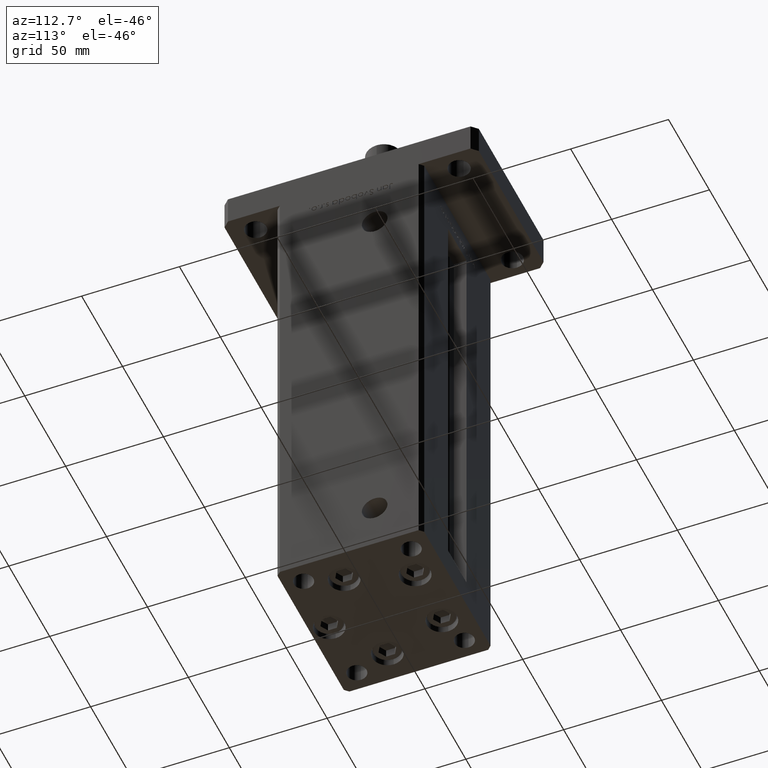
[diagram: clean part render]
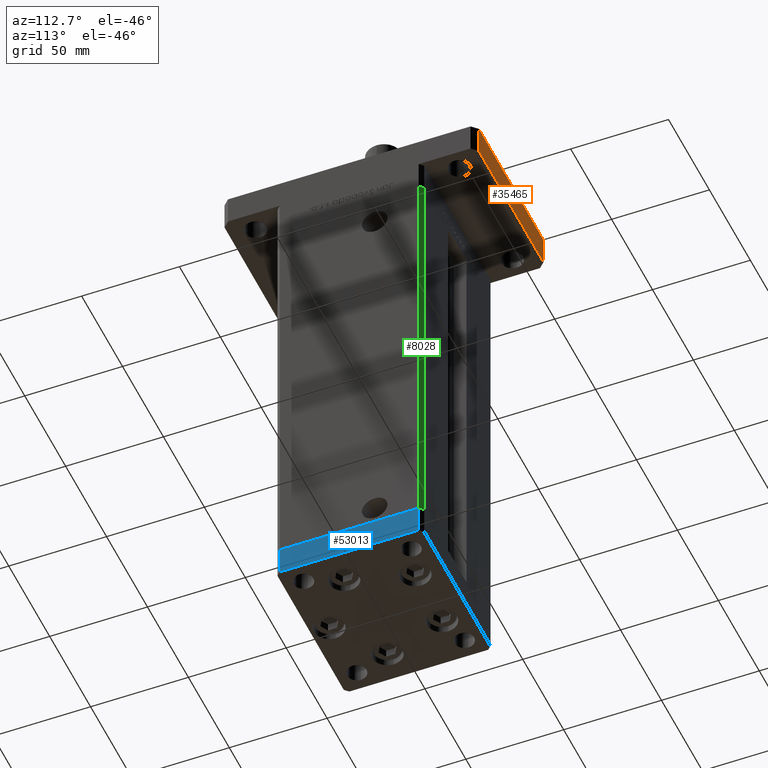
[diagram: same view with three faces highlighted in distinct colors, each labeled with its STEP entity id]
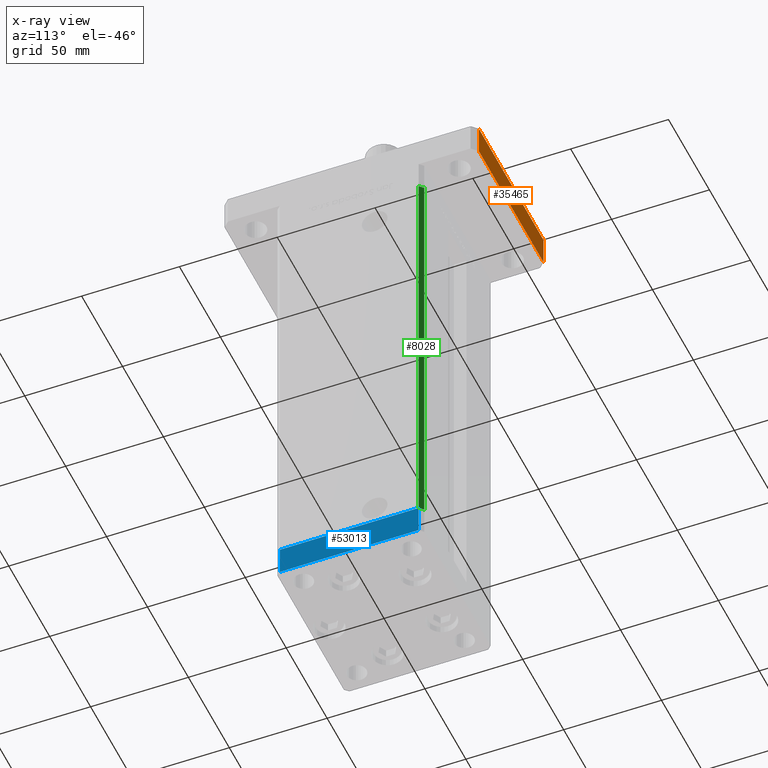
[diagram: x-ray of the same camera — body ghosted, the three highlighted faces saturated]
A machine part, auxiliary view with three faces highlighted in distinct colors.
The next image is the same camera in x-ray (body ghosted, the three faces saturated) — at least one of them is partly hidden behind the body in this view.
Their STEP definitions:

[orange] entity #35465 — the highlighted planar face has unit normal (0, -1, 0).
#209 = AXIS2_PLACEMENT_3D ( 'NONE', #23745, #50017, #37444 ) ;
#7152 = VECTOR ( 'NONE', #9212, 1000.000000000000000 ) ;
#9212 = DIRECTION ( 'NONE',  ( -1.000000000000000000, -3.513364001978340512E-16, 0.000000000000000000 ) ) ;
#10689 = VERTEX_POINT ( 'NONE', #46167 ) ;
#10881 = PLANE ( 'NONE',  #209 ) ;
#11150 = CARTESIAN_POINT ( 'NONE',  ( 39.50000000000002842, 65.00000000000002842, 0.000000000000000000 ) ) ;
#11663 = VECTOR ( 'NONE', #15134, 1000.000000000000000 ) ;
#12523 = VERTEX_POINT ( 'NONE', #37256 ) ;
#12864 = LINE ( 'NONE', #29636, #7152 ) ;
#13121 = LINE ( 'NONE', #18671, #37506 ) ;
#13704 = EDGE_CURVE ( 'NONE', #12523, #28341, #13121, .T. ) ;
#14840 = EDGE_CURVE ( 'NONE', #12523, #10689, #12864, .T. ) ;
#15134 = DIRECTION ( 'NONE',  ( -0.000000000000000000, -0.000000000000000000, -1.000000000000000000 ) ) ;
#15662 = VECTOR ( 'NONE', #16182, 1000.000000000000000 ) ;
#15727 = EDGE_CURVE ( 'NONE', #10689, #16011, #23521, .T. ) ;
#16011 = VERTEX_POINT ( 'NONE', #22626 ) ;
#16182 = DIRECTION ( 'NONE',  ( -1.000000000000000000, -3.513364001978340512E-16, 0.000000000000000000 ) ) ;
#17860 = DIRECTION ( 'NONE',  ( -0.000000000000000000, -0.000000000000000000, -1.000000000000000000 ) ) ;
#18671 = CARTESIAN_POINT ( 'NONE',  ( 39.50000000000002842, 65.00000000000002842, 15.00000000000000000 ) ) ;
#20650 = LINE ( 'NONE', #11150, #15662 ) ;
#22626 = CARTESIAN_POINT ( 'NONE',  ( -39.50000000000003553, 65.00000000000000000, 0.000000000000000000 ) ) ;
#23521 = LINE ( 'NONE', #41124, #11663 ) ;
#23745 = CARTESIAN_POINT ( 'NONE',  ( 39.50000000000002842, 65.00000000000002842, 15.00000000000000000 ) ) ;
#24022 = FACE_OUTER_BOUND ( 'NONE', #36771, .T. ) ;
#26049 = ORIENTED_EDGE ( 'NONE', *, *, #15727, .F. ) ;
#28341 = VERTEX_POINT ( 'NONE', #50199 ) ;
#29636 = CARTESIAN_POINT ( 'NONE',  ( 39.50000000000002842, 65.00000000000002842, 15.00000000000000000 ) ) ;
#29949 = ORIENTED_EDGE ( 'NONE', *, *, #48736, .T. ) ;
#30729 = ORIENTED_EDGE ( 'NONE', *, *, #13704, .T. ) ;
#35465 = ADVANCED_FACE ( 'NONE', ( #24022 ), #10881, .F. ) ;
#36771 = EDGE_LOOP ( 'NONE', ( #29949, #26049, #45321, #30729 ) ) ;
#37256 = CARTESIAN_POINT ( 'NONE',  ( 39.50000000000002842, 65.00000000000002842, 15.00000000000000000 ) ) ;
#37444 = DIRECTION ( 'NONE',  ( 1.000000000000000000, 3.513364001978341005E-16, 0.000000000000000000 ) ) ;
#37506 = VECTOR ( 'NONE', #17860, 1000.000000000000000 ) ;
#41124 = CARTESIAN_POINT ( 'NONE',  ( -39.50000000000003553, 65.00000000000000000, 15.00000000000000000 ) ) ;
#45321 = ORIENTED_EDGE ( 'NONE', *, *, #14840, .F. ) ;
#46167 = CARTESIAN_POINT ( 'NONE',  ( -39.50000000000003553, 65.00000000000000000, 15.00000000000000000 ) ) ;
#48736 = EDGE_CURVE ( 'NONE', #28341, #16011, #20650, .T. ) ;
#50017 = DIRECTION ( 'NONE',  ( 3.513364001978341005E-16, -1.000000000000000000, 0.000000000000000000 ) ) ;
#50199 = CARTESIAN_POINT ( 'NONE',  ( 39.50000000000002842, 65.00000000000002842, 0.000000000000000000 ) ) ;

[blue] entity #53013 — the highlighted planar face has unit normal (1, -0, 0).
#308 = VECTOR ( 'NONE', #46400, 1000.000000000000000 ) ;
#458 = VERTEX_POINT ( 'NONE', #6586 ) ;
#1598 = PLANE ( 'NONE',  #22951 ) ;
#3789 = VECTOR ( 'NONE', #20555, 1000.000000000000000 ) ;
#5122 = LINE ( 'NONE', #26898, #53970 ) ;
#6586 = CARTESIAN_POINT ( 'NONE',  ( -42.50000000000000000, -35.50000000000000711, 0.000000000000000000 ) ) ;
#8101 = LINE ( 'NONE', #38565, #308 ) ;
#11752 = CARTESIAN_POINT ( 'NONE',  ( -42.50000000000000000, -35.50000000000000711, -15.00000000000000000 ) ) ;
#13621 = CARTESIAN_POINT ( 'NONE',  ( -42.50000000000000711, 35.49999999999997158, -15.00000000000000000 ) ) ;
#18933 = LINE ( 'NONE', #35727, #48465 ) ;
#19140 = VERTEX_POINT ( 'NONE', #11752 ) ;
#20555 = DIRECTION ( 'NONE',  ( 9.773090005503140331E-17, -1.000000000000000000, 0.000000000000000000 ) ) ;
#20823 = EDGE_CURVE ( 'NONE', #21954, #19140, #54388, .T. ) ;
#21107 = CARTESIAN_POINT ( 'NONE',  ( -42.50000000000000711, 35.49999999999997158, -15.00000000000000000 ) ) ;
#21954 = VERTEX_POINT ( 'NONE', #44352 ) ;
#22951 = AXIS2_PLACEMENT_3D ( 'NONE', #13621, #47731, #34330 ) ;
#26809 = ORIENTED_EDGE ( 'NONE', *, *, #26908, .T. ) ;
#26898 = CARTESIAN_POINT ( 'NONE',  ( -42.50000000000000711, 35.49999999999997158, -15.00000000000000000 ) ) ;
#26908 = EDGE_CURVE ( 'NONE', #19140, #458, #8101, .T. ) ;
#34330 = DIRECTION ( 'NONE',  ( 9.773090005503140331E-17, -1.000000000000000000, 0.000000000000000000 ) ) ;
#34602 = FACE_OUTER_BOUND ( 'NONE', #53913, .T. ) ;
#35727 = CARTESIAN_POINT ( 'NONE',  ( -42.50000000000000711, 35.49999999999997158, 0.000000000000000000 ) ) ;
#35999 = DIRECTION ( 'NONE',  ( 9.773090005503140331E-17, -1.000000000000000000, 0.000000000000000000 ) ) ;
#37560 = EDGE_CURVE ( 'NONE', #37704, #458, #18933, .T. ) ;
#37704 = VERTEX_POINT ( 'NONE', #51885 ) ;
#38565 = CARTESIAN_POINT ( 'NONE',  ( -42.50000000000000000, -35.50000000000000711, -15.00000000000000000 ) ) ;
#39466 = ORIENTED_EDGE ( 'NONE', *, *, #20823, .T. ) ;
#41519 = EDGE_CURVE ( 'NONE', #21954, #37704, #5122, .T. ) ;
#42866 = DIRECTION ( 'NONE',  ( 0.000000000000000000, 0.000000000000000000, 1.000000000000000000 ) ) ;
#44352 = CARTESIAN_POINT ( 'NONE',  ( -42.50000000000000711, 35.49999999999997158, -15.00000000000000000 ) ) ;
#44806 = ORIENTED_EDGE ( 'NONE', *, *, #37560, .F. ) ;
#46400 = DIRECTION ( 'NONE',  ( 0.000000000000000000, 0.000000000000000000, 1.000000000000000000 ) ) ;
#47731 = DIRECTION ( 'NONE',  ( -1.000000000000000000, -9.773090005503140331E-17, 0.000000000000000000 ) ) ;
#48465 = VECTOR ( 'NONE', #35999, 1000.000000000000000 ) ;
#49601 = ORIENTED_EDGE ( 'NONE', *, *, #41519, .F. ) ;
#51885 = CARTESIAN_POINT ( 'NONE',  ( -42.50000000000000711, 35.49999999999997158, 0.000000000000000000 ) ) ;
#53013 = ADVANCED_FACE ( 'NONE', ( #34602 ), #1598, .T. ) ;
#53913 = EDGE_LOOP ( 'NONE', ( #44806, #49601, #39466, #26809 ) ) ;
#53970 = VECTOR ( 'NONE', #42866, 1000.000000000000000 ) ;
#54388 = LINE ( 'NONE', #21107, #3789 ) ;

[green] entity #8028 — the highlighted planar face has unit normal (0.7071, 0.7071, 0).
#838 = AXIS2_PLACEMENT_3D ( 'NONE', #2181, #23696, #24539 ) ;
#2181 = CARTESIAN_POINT ( 'NONE',  ( 40.50000000000000000, 37.50000000000000711, 218.5000000000000000 ) ) ;
#3700 = LINE ( 'NONE', #37792, #25255 ) ;
#8028 = ADVANCED_FACE ( 'NONE', ( #44657 ), #49414, .T. ) ;
#11052 = ORIENTED_EDGE ( 'NONE', *, *, #52914, .T. ) ;
#16426 = VERTEX_POINT ( 'NONE', #17260 ) ;
#17260 = CARTESIAN_POINT ( 'NONE',  ( 40.50000000000000000, 37.50000000000000711, 218.5000000000000000 ) ) ;
#18888 = DIRECTION ( 'NONE',  ( -0.000000000000000000, -0.000000000000000000, -1.000000000000000000 ) ) ;
#21462 = CARTESIAN_POINT ( 'NONE',  ( 40.50000000000000000, 37.50000000000000711, 218.5000000000000000 ) ) ;
#21942 = CARTESIAN_POINT ( 'NONE',  ( 42.50000000000000711, 35.50000000000001421, 0.000000000000000000 ) ) ;
#22981 = CARTESIAN_POINT ( 'NONE',  ( 40.50000000000000000, 37.50000000000000711, 0.000000000000000000 ) ) ;
#23696 = DIRECTION ( 'NONE',  ( 0.7071067811865450192, 0.7071067811865500152, -0.000000000000000000 ) ) ;
#23942 = ORIENTED_EDGE ( 'NONE', *, *, #53672, .F. ) ;
#24539 = DIRECTION ( 'NONE',  ( -0.7071067811865500152, 0.7071067811865450192, 0.000000000000000000 ) ) ;
#24853 = LINE ( 'NONE', #21462, #36328 ) ;
#25255 = VECTOR ( 'NONE', #54837, 1000.000000000000000 ) ;
#27383 = LINE ( 'NONE', #52555, #48590 ) ;
#28901 = EDGE_LOOP ( 'NONE', ( #34570, #23942, #11052, #47579 ) ) ;
#30461 = CARTESIAN_POINT ( 'NONE',  ( 40.50000000000000000, 37.50000000000000711, 218.5000000000000000 ) ) ;
#34570 = ORIENTED_EDGE ( 'NONE', *, *, #41983, .F. ) ;
#35132 = VERTEX_POINT ( 'NONE', #22981 ) ;
#36163 = EDGE_CURVE ( 'NONE', #52530, #41045, #3700, .T. ) ;
#36328 = VECTOR ( 'NONE', #45809, 1000.000000000000114 ) ;
#37792 = CARTESIAN_POINT ( 'NONE',  ( 42.50000000000000711, 35.50000000000001421, 218.5000000000000000 ) ) ;
#41045 = VERTEX_POINT ( 'NONE', #21942 ) ;
#41983 = EDGE_CURVE ( 'NONE', #35132, #41045, #27383, .T. ) ;
#44438 = DIRECTION ( 'NONE',  ( 0.7071067811865500152, -0.7071067811865451302, 0.000000000000000000 ) ) ;
#44657 = FACE_OUTER_BOUND ( 'NONE', #28901, .T. ) ;
#45809 = DIRECTION ( 'NONE',  ( 0.7071067811865500152, -0.7071067811865451302, 0.000000000000000000 ) ) ;
#47521 = LINE ( 'NONE', #30461, #48804 ) ;
#47579 = ORIENTED_EDGE ( 'NONE', *, *, #36163, .T. ) ;
#48590 = VECTOR ( 'NONE', #44438, 1000.000000000000114 ) ;
#48685 = CARTESIAN_POINT ( 'NONE',  ( 42.50000000000000711, 35.50000000000001421, 218.5000000000000000 ) ) ;
#48804 = VECTOR ( 'NONE', #18888, 1000.000000000000000 ) ;
#49414 = PLANE ( 'NONE',  #838 ) ;
#52530 = VERTEX_POINT ( 'NONE', #48685 ) ;
#52555 = CARTESIAN_POINT ( 'NONE',  ( 40.50000000000000000, 37.50000000000000711, 0.000000000000000000 ) ) ;
#52914 = EDGE_CURVE ( 'NONE', #16426, #52530, #24853, .T. ) ;
#53672 = EDGE_CURVE ( 'NONE', #16426, #35132, #47521, .T. ) ;
#54837 = DIRECTION ( 'NONE',  ( -0.000000000000000000, -0.000000000000000000, -1.000000000000000000 ) ) ;